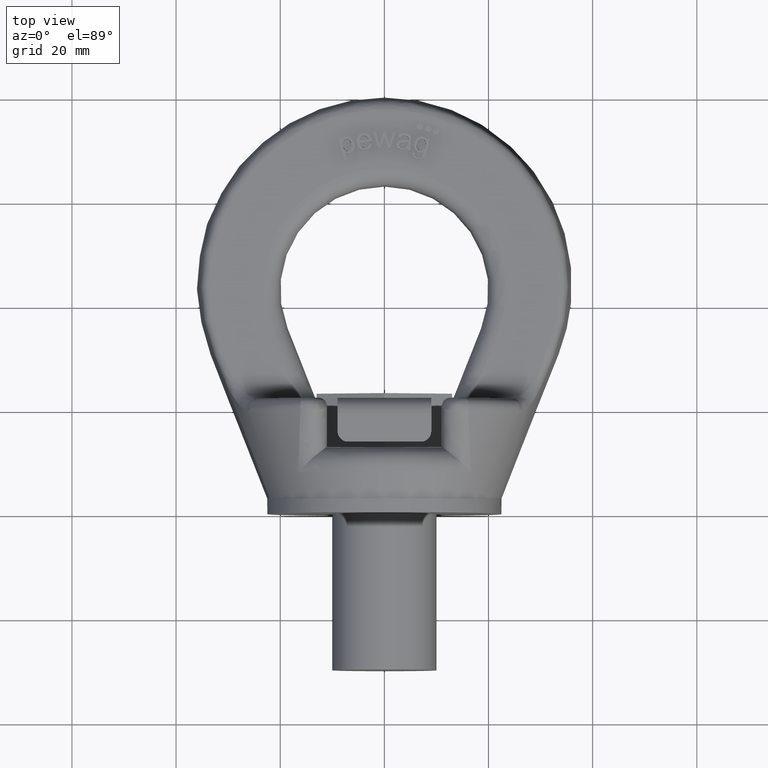
[diagram: clean part render]
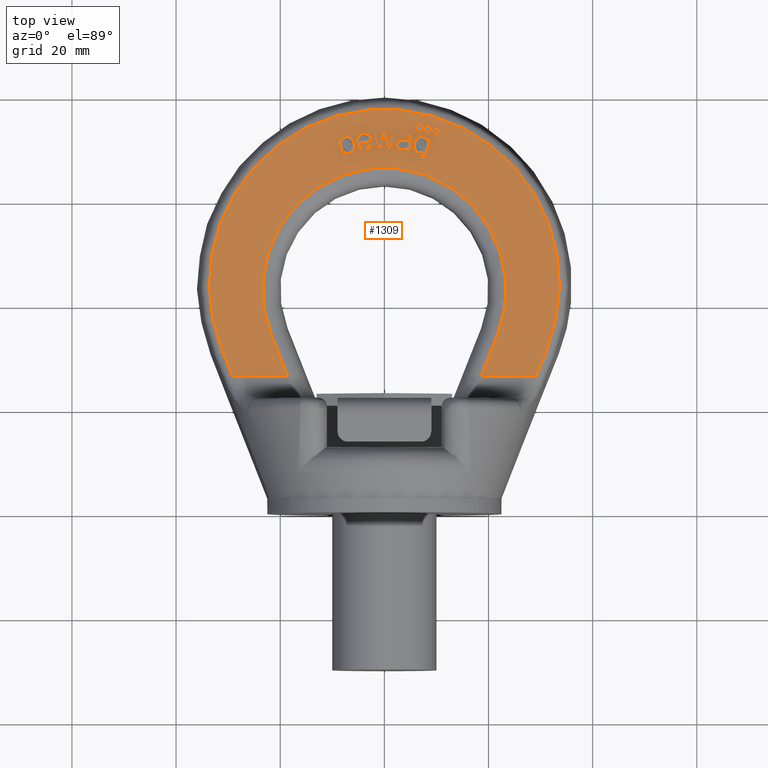
[diagram: same view with one face highlighted and labeled with its STEP entity id]
A machine part, top view. The second image highlights one B-rep face of the part: STEP entity #1309.
In plain terms, the highlighted planar face has unit normal (0, -0, -1).
Its self-contained STEP definition (entity closure, byte-faithful):
#1309=ADVANCED_FACE('',(#1756,#1757,#1758,#1759,#1760,#1761,#1762,#1763,
#1764),#1548,.F.);
#1548=PLANE('',#5122);
#1666=CIRCLE('',#5117,0.6375);
#1667=CIRCLE('',#5118,0.637499999999999);
#1668=CIRCLE('',#5119,0.637499999999999);
#1669=CIRCLE('',#5120,23.4);
#1670=CIRCLE('',#5121,33.6191909480285);
#1756=FACE_BOUND('',#1812,.T.);
#1757=FACE_BOUND('',#1813,.T.);
#1758=FACE_BOUND('',#1814,.T.);
#1759=FACE_BOUND('',#1815,.T.);
#1760=FACE_BOUND('',#1816,.T.);
#1761=FACE_BOUND('',#1817,.T.);
#1762=FACE_BOUND('',#1818,.T.);
#1763=FACE_BOUND('',#1819,.T.);
#1764=FACE_BOUND('',#1820,.T.);
#1812=EDGE_LOOP('',(#2702,#2703,#2704,#2705,#2706,#2707,#2708));
#1813=EDGE_LOOP('',(#2709,#2710,#2711,#2712,#2713,#2714,#2715,#2716,#2717,
#2718,#2719,#2720,#2721,#2722,#2723));
#1814=EDGE_LOOP('',(#2724,#2725,#2726,#2727,#2728));
#1815=EDGE_LOOP('',(#2729));
#1816=EDGE_LOOP('',(#2730));
#1817=EDGE_LOOP('',(#2731));
#1818=EDGE_LOOP('',(#2732,#2733,#2734,#2735,#2736,#2737,#2738,#2739));
#1819=EDGE_LOOP('',(#2740,#2741,#2742,#2743,#2744,#2745));
#1820=EDGE_LOOP('',(#2746,#2747,#2748,#2749,#2750,#2751,#2752,#2753,#2754));
#2086=LINE('',#6270,#2366);
#2087=LINE('',#6302,#2367);
#2088=LINE('',#6304,#2368);
#2089=LINE('',#6305,#2369);
#2090=LINE('',#6308,#2370);
#2091=LINE('',#6310,#2371);
#2092=LINE('',#6312,#2372);
#2093=LINE('',#6326,#2373);
#2094=LINE('',#6328,#2374);
#2095=LINE('',#6344,#2375);
#2096=LINE('',#6346,#2376);
#2097=LINE('',#6348,#2377);
#2098=LINE('',#6350,#2378);
#2099=LINE('',#6352,#2379);
#2100=LINE('',#6368,#2380);
#2101=LINE('',#6391,#2381);
#2102=LINE('',#6401,#2382);
#2103=LINE('',#6403,#2383);
#2104=LINE('',#6417,#2384);
#2105=LINE('',#6419,#2385);
#2106=LINE('',#6420,#2386);
#2107=LINE('',#6423,#2387);
#2108=LINE('',#6425,#2388);
#2109=LINE('',#6427,#2389);
#2110=LINE('',#6429,#2390);
#2111=LINE('',#6453,#2391);
#2112=LINE('',#6498,#2392);
#2366=VECTOR('',#5384,1.);
#2367=VECTOR('',#5385,1.);
#2368=VECTOR('',#5386,1.);
#2369=VECTOR('',#5387,1.);
#2370=VECTOR('',#5388,1.);
#2371=VECTOR('',#5389,1.);
#2372=VECTOR('',#5390,1.);
#2373=VECTOR('',#5391,1.);
#2374=VECTOR('',#5392,1.);
#2375=VECTOR('',#5393,1.);
#2376=VECTOR('',#5394,1.);
#2377=VECTOR('',#5395,1.);
#2378=VECTOR('',#5396,1.);
#2379=VECTOR('',#5397,1.);
#2380=VECTOR('',#5398,1.);
#2381=VECTOR('',#5399,1.);
#2382=VECTOR('',#5408,1.);
#2383=VECTOR('',#5409,1.);
#2384=VECTOR('',#5412,1.);
#2385=VECTOR('',#5413,1.);
#2386=VECTOR('',#5414,1.);
#2387=VECTOR('',#5415,1.);
#2388=VECTOR('',#5416,1.);
#2389=VECTOR('',#5417,1.);
#2390=VECTOR('',#5418,1.);
#2391=VECTOR('',#5419,1.);
#2392=VECTOR('',#5420,1.);
#2702=ORIENTED_EDGE('',*,*,#4266,.T.);
#2703=ORIENTED_EDGE('',*,*,#4267,.T.);
#2704=ORIENTED_EDGE('',*,*,#4268,.T.);
#2705=ORIENTED_EDGE('',*,*,#4269,.T.);
#2706=ORIENTED_EDGE('',*,*,#4270,.T.);
#2707=ORIENTED_EDGE('',*,*,#4271,.T.);
#2708=ORIENTED_EDGE('',*,*,#4272,.T.);
#2709=ORIENTED_EDGE('',*,*,#4273,.T.);
#2710=ORIENTED_EDGE('',*,*,#4274,.T.);
#2711=ORIENTED_EDGE('',*,*,#4275,.T.);
#2712=ORIENTED_EDGE('',*,*,#4276,.T.);
#2713=ORIENTED_EDGE('',*,*,#4277,.T.);
#2714=ORIENTED_EDGE('',*,*,#4278,.T.);
#2715=ORIENTED_EDGE('',*,*,#4279,.T.);
#2716=ORIENTED_EDGE('',*,*,#4280,.T.);
#2717=ORIENTED_EDGE('',*,*,#4281,.T.);
#2718=ORIENTED_EDGE('',*,*,#4282,.T.);
#2719=ORIENTED_EDGE('',*,*,#4283,.T.);
#2720=ORIENTED_EDGE('',*,*,#4284,.T.);
#2721=ORIENTED_EDGE('',*,*,#4285,.T.);
#2722=ORIENTED_EDGE('',*,*,#4286,.T.);
#2723=ORIENTED_EDGE('',*,*,#4287,.T.);
#2724=ORIENTED_EDGE('',*,*,#4288,.T.);
#2725=ORIENTED_EDGE('',*,*,#4289,.T.);
#2726=ORIENTED_EDGE('',*,*,#4290,.T.);
#2727=ORIENTED_EDGE('',*,*,#4291,.T.);
#2728=ORIENTED_EDGE('',*,*,#4292,.T.);
#2729=ORIENTED_EDGE('',*,*,#4293,.F.);
#2730=ORIENTED_EDGE('',*,*,#4294,.F.);
#2731=ORIENTED_EDGE('',*,*,#4295,.F.);
#2732=ORIENTED_EDGE('',*,*,#4296,.T.);
#2733=ORIENTED_EDGE('',*,*,#4297,.T.);
#2734=ORIENTED_EDGE('',*,*,#4298,.T.);
#2735=ORIENTED_EDGE('',*,*,#4299,.T.);
#2736=ORIENTED_EDGE('',*,*,#4300,.T.);
#2737=ORIENTED_EDGE('',*,*,#4301,.T.);
#2738=ORIENTED_EDGE('',*,*,#4302,.T.);
#2739=ORIENTED_EDGE('',*,*,#4303,.T.);
#2740=ORIENTED_EDGE('',*,*,#4304,.T.);
#2741=ORIENTED_EDGE('',*,*,#4305,.T.);
#2742=ORIENTED_EDGE('',*,*,#4306,.T.);
#2743=ORIENTED_EDGE('',*,*,#4307,.T.);
#2744=ORIENTED_EDGE('',*,*,#4308,.T.);
#2745=ORIENTED_EDGE('',*,*,#4309,.T.);
#2746=ORIENTED_EDGE('',*,*,#4310,.T.);
#2747=ORIENTED_EDGE('',*,*,#4311,.T.);
#2748=ORIENTED_EDGE('',*,*,#4312,.T.);
#2749=ORIENTED_EDGE('',*,*,#4313,.T.);
#2750=ORIENTED_EDGE('',*,*,#4314,.T.);
#2751=ORIENTED_EDGE('',*,*,#4315,.T.);
#2752=ORIENTED_EDGE('',*,*,#4316,.T.);
#2753=ORIENTED_EDGE('',*,*,#4317,.T.);
#2754=ORIENTED_EDGE('',*,*,#4318,.T.);
#3878=VERTEX_POINT('',#6263);
#3879=VERTEX_POINT('',#6264);
#3880=VERTEX_POINT('',#6269);
#3881=VERTEX_POINT('',#6271);
#3882=VERTEX_POINT('',#6284);
#3883=VERTEX_POINT('',#6301);
#3884=VERTEX_POINT('',#6303);
#3885=VERTEX_POINT('',#6306);
#3886=VERTEX_POINT('',#6307);
#3887=VERTEX_POINT('',#6309);
#3888=VERTEX_POINT('',#6311);
#3889=VERTEX_POINT('',#6313);
#3890=VERTEX_POINT('',#6320);
#3891=VERTEX_POINT('',#6325);
#3892=VERTEX_POINT('',#6327);
#3893=VERTEX_POINT('',#6329);
#3894=VERTEX_POINT('',#6336);
#3895=VERTEX_POINT('',#6343);
#3896=VERTEX_POINT('',#6345);
#3897=VERTEX_POINT('',#6347);
#3898=VERTEX_POINT('',#6349);
#3899=VERTEX_POINT('',#6351);
#3900=VERTEX_POINT('',#6361);
#3901=VERTEX_POINT('',#6362);
#3902=VERTEX_POINT('',#6367);
#3903=VERTEX_POINT('',#6369);
#3904=VERTEX_POINT('',#6390);
#3905=VERTEX_POINT('',#6393);
#3906=VERTEX_POINT('',#6395);
#3907=VERTEX_POINT('',#6397);
#3908=VERTEX_POINT('',#6399);
#3909=VERTEX_POINT('',#6400);
#3910=VERTEX_POINT('',#6402);
#3911=VERTEX_POINT('',#6404);
#3912=VERTEX_POINT('',#6409);
#3913=VERTEX_POINT('',#6411);
#3914=VERTEX_POINT('',#6416);
#3915=VERTEX_POINT('',#6418);
#3916=VERTEX_POINT('',#6421);
#3917=VERTEX_POINT('',#6422);
#3918=VERTEX_POINT('',#6424);
#3919=VERTEX_POINT('',#6426);
#3920=VERTEX_POINT('',#6428);
#3921=VERTEX_POINT('',#6430);
#3922=VERTEX_POINT('',#6454);
#3923=VERTEX_POINT('',#6455);
#3924=VERTEX_POINT('',#6460);
#3925=VERTEX_POINT('',#6477);
#3926=VERTEX_POINT('',#6484);
#3927=VERTEX_POINT('',#6497);
#3928=VERTEX_POINT('',#6499);
#3929=VERTEX_POINT('',#6504);
#3930=VERTEX_POINT('',#6517);
#4266=EDGE_CURVE('',#3878,#3879,#4854,.T.);
#4267=EDGE_CURVE('',#3879,#3880,#4855,.T.);
#4268=EDGE_CURVE('',#3880,#3881,#2086,.T.);
#4269=EDGE_CURVE('',#3881,#3882,#4856,.T.);
#4270=EDGE_CURVE('',#3882,#3883,#4857,.T.);
#4271=EDGE_CURVE('',#3883,#3884,#2087,.T.);
#4272=EDGE_CURVE('',#3884,#3878,#2088,.T.);
#4273=EDGE_CURVE('',#3885,#3886,#2089,.T.);
#4274=EDGE_CURVE('',#3886,#3887,#2090,.T.);
#4275=EDGE_CURVE('',#3887,#3888,#2091,.T.);
#4276=EDGE_CURVE('',#3888,#3889,#2092,.T.);
#4277=EDGE_CURVE('',#3889,#3890,#4858,.T.);
#4278=EDGE_CURVE('',#3890,#3891,#4859,.T.);
#4279=EDGE_CURVE('',#3891,#3892,#2093,.T.);
#4280=EDGE_CURVE('',#3892,#3893,#2094,.T.);
#4281=EDGE_CURVE('',#3893,#3894,#4860,.T.);
#4282=EDGE_CURVE('',#3894,#3895,#4861,.T.);
#4283=EDGE_CURVE('',#3895,#3896,#2095,.T.);
#4284=EDGE_CURVE('',#3896,#3897,#2096,.T.);
#4285=EDGE_CURVE('',#3897,#3898,#2097,.T.);
#4286=EDGE_CURVE('',#3898,#3899,#2098,.T.);
#4287=EDGE_CURVE('',#3899,#3885,#2099,.T.);
#4288=EDGE_CURVE('',#3900,#3901,#4862,.T.);
#4289=EDGE_CURVE('',#3901,#3902,#4863,.T.);
#4290=EDGE_CURVE('',#3902,#3903,#2100,.T.);
#4291=EDGE_CURVE('',#3903,#3904,#4864,.T.);
#4292=EDGE_CURVE('',#3904,#3900,#2101,.T.);
#4293=EDGE_CURVE('',#3905,#3905,#1666,.T.);
#4294=EDGE_CURVE('',#3906,#3906,#1667,.T.);
#4295=EDGE_CURVE('',#3907,#3907,#1668,.T.);
#4296=EDGE_CURVE('',#3908,#3909,#1669,.T.);
#4297=EDGE_CURVE('',#3909,#3910,#2102,.T.);
#4298=EDGE_CURVE('',#3910,#3911,#2103,.T.);
#4299=EDGE_CURVE('',#3911,#3912,#4865,.T.);
#4300=EDGE_CURVE('',#3912,#3913,#1670,.T.);
#4301=EDGE_CURVE('',#3913,#3914,#4866,.T.);
#4302=EDGE_CURVE('',#3914,#3915,#2104,.T.);
#4303=EDGE_CURVE('',#3915,#3908,#2105,.T.);
#4304=EDGE_CURVE('',#3916,#3917,#2106,.T.);
#4305=EDGE_CURVE('',#3917,#3918,#2107,.T.);
#4306=EDGE_CURVE('',#3918,#3919,#2108,.T.);
#4307=EDGE_CURVE('',#3919,#3920,#2109,.T.);
#4308=EDGE_CURVE('',#3920,#3921,#2110,.T.);
#4309=EDGE_CURVE('',#3921,#3916,#4867,.T.);
#4310=EDGE_CURVE('',#3922,#3923,#2111,.T.);
#4311=EDGE_CURVE('',#3923,#3924,#4868,.T.);
#4312=EDGE_CURVE('',#3924,#3925,#4869,.T.);
#4313=EDGE_CURVE('',#3925,#3926,#4870,.T.);
#4314=EDGE_CURVE('',#3926,#3927,#4871,.T.);
#4315=EDGE_CURVE('',#3927,#3928,#2112,.T.);
#4316=EDGE_CURVE('',#3928,#3929,#4872,.T.);
#4317=EDGE_CURVE('',#3929,#3930,#4873,.T.);
#4318=EDGE_CURVE('',#3930,#3922,#4874,.T.);
#4854=B_SPLINE_CURVE_WITH_KNOTS('',3,(#6251,#6252,#6253,#6254,#6255,#6256,
#6257,#6258,#6259,#6260,#6261,#6262),.UNSPECIFIED.,.F.,.F.,(4,2,2,2,2,4),
(0.,0.305645754892088,0.47082930624921,0.636012857606333,0.802206343843954,
1.),.UNSPECIFIED.);
#4855=B_SPLINE_CURVE_WITH_KNOTS('',3,(#6265,#6266,#6267,#6268),
 .UNSPECIFIED.,.F.,.F.,(4,4),(0.,1.),.UNSPECIFIED.);
#4856=B_SPLINE_CURVE_WITH_KNOTS('',3,(#6272,#6273,#6274,#6275,#6276,#6277,
#6278,#6279,#6280,#6281,#6282,#6283),.UNSPECIFIED.,.F.,.F.,(4,2,2,2,2,4),
(0.,0.163304651309279,0.382303784248529,0.619375661168199,0.856447538087862,
1.),.UNSPECIFIED.);
#4857=B_SPLINE_CURVE_WITH_KNOTS('',3,(#6285,#6286,#6287,#6288,#6289,#6290,
#6291,#6292,#6293,#6294,#6295,#6296,#6297,#6298,#6299,#6300),
 .UNSPECIFIED.,.F.,.F.,(4,2,2,2,2,2,2,4),(0.,0.139503666745463,0.312880428291741,
0.486257189838014,0.605370995480486,0.723854105689098,0.842337215897707,
1.),.UNSPECIFIED.);
#4858=B_SPLINE_CURVE_WITH_KNOTS('',3,(#6314,#6315,#6316,#6317,#6318,#6319),
 .UNSPECIFIED.,.F.,.F.,(4,2,4),(0.,0.728909607654967,1.),.UNSPECIFIED.);
#4859=B_SPLINE_CURVE_WITH_KNOTS('',3,(#6321,#6322,#6323,#6324),
 .UNSPECIFIED.,.F.,.F.,(4,4),(0.,1.),.UNSPECIFIED.);
#4860=B_SPLINE_CURVE_WITH_KNOTS('',3,(#6330,#6331,#6332,#6333,#6334,#6335),
 .UNSPECIFIED.,.F.,.F.,(4,2,4),(0.,0.752082276025118,1.),.UNSPECIFIED.);
#4861=B_SPLINE_CURVE_WITH_KNOTS('',3,(#6337,#6338,#6339,#6340,#6341,#6342),
 .UNSPECIFIED.,.F.,.F.,(4,2,4),(0.,0.250451922487254,1.),.UNSPECIFIED.);
#4862=B_SPLINE_CURVE_WITH_KNOTS('',3,(#6353,#6354,#6355,#6356,#6357,#6358,
#6359,#6360),.UNSPECIFIED.,.F.,.F.,(4,2,2,4),(0.,0.363477968613217,0.728087675912442,
1.),.UNSPECIFIED.);
#4863=B_SPLINE_CURVE_WITH_KNOTS('',3,(#6363,#6364,#6365,#6366),
 .UNSPECIFIED.,.F.,.F.,(4,4),(0.,1.),.UNSPECIFIED.);
#4864=B_SPLINE_CURVE_WITH_KNOTS('',3,(#6370,#6371,#6372,#6373,#6374,#6375,
#6376,#6377,#6378,#6379,#6380,#6381,#6382,#6383,#6384,#6385,#6386,#6387,
#6388,#6389),.UNSPECIFIED.,.F.,.F.,(4,2,2,2,2,2,2,2,2,4),(0.,0.102921203122041,
0.206156274885324,0.336063021724228,0.465707475917727,0.599570296299737,
0.733433116681747,0.86284525505617,0.992257393430593,1.),.UNSPECIFIED.);
#4865=B_SPLINE_CURVE_WITH_KNOTS('',3,(#6405,#6406,#6407,#6408),
 .UNSPECIFIED.,.F.,.F.,(4,4),(0.,1.),.UNSPECIFIED.);
#4866=B_SPLINE_CURVE_WITH_KNOTS('',3,(#6412,#6413,#6414,#6415),
 .UNSPECIFIED.,.F.,.F.,(4,4),(0.,1.),.UNSPECIFIED.);
#4867=B_SPLINE_CURVE_WITH_KNOTS('',3,(#6431,#6432,#6433,#6434,#6435,#6436,
#6437,#6438,#6439,#6440,#6441,#6442,#6443,#6444,#6445,#6446,#6447,#6448,
#6449,#6450,#6451,#6452),.UNSPECIFIED.,.F.,.F.,(4,2,2,2,2,2,2,2,2,2,4),
(0.,0.0830854503763885,0.165678296755078,0.273272220956502,0.380460889370528,
0.487248686046691,0.601946689884048,0.717055250849204,0.83190951462343,
0.915821305508707,1.),.UNSPECIFIED.);
#4868=B_SPLINE_CURVE_WITH_KNOTS('',3,(#6456,#6457,#6458,#6459),
 .UNSPECIFIED.,.F.,.F.,(4,4),(0.,1.),.UNSPECIFIED.);
#4869=B_SPLINE_CURVE_WITH_KNOTS('',3,(#6461,#6462,#6463,#6464,#6465,#6466,
#6467,#6468,#6469,#6470,#6471,#6472,#6473,#6474,#6475,#6476),
 .UNSPECIFIED.,.F.,.F.,(4,2,2,2,2,2,2,4),(0.,0.121639465164557,0.24393090499118,
0.445161792748218,0.646392680505264,0.763565096161265,0.881519242448369,
1.),.UNSPECIFIED.);
#4870=B_SPLINE_CURVE_WITH_KNOTS('',3,(#6478,#6479,#6480,#6481,#6482,#6483),
 .UNSPECIFIED.,.F.,.F.,(4,2,4),(0.,0.329344693449399,1.),.UNSPECIFIED.);
#4871=B_SPLINE_CURVE_WITH_KNOTS('',3,(#6485,#6486,#6487,#6488,#6489,#6490,
#6491,#6492,#6493,#6494,#6495,#6496),.UNSPECIFIED.,.F.,.F.,(4,2,2,2,2,4),
(0.,0.0173977322142934,0.21798335068495,0.490675035316427,0.745337517658217,
1.),.UNSPECIFIED.);
#4872=B_SPLINE_CURVE_WITH_KNOTS('',3,(#6500,#6501,#6502,#6503),
 .UNSPECIFIED.,.F.,.F.,(4,4),(0.,1.),.UNSPECIFIED.);
#4873=B_SPLINE_CURVE_WITH_KNOTS('',3,(#6505,#6506,#6507,#6508,#6509,#6510,
#6511,#6512,#6513,#6514,#6515,#6516),.UNSPECIFIED.,.F.,.F.,(4,2,2,2,2,4),
(0.,0.201730292707484,0.402155128097303,0.601755169925848,0.800199545078037,
1.),.UNSPECIFIED.);
#4874=B_SPLINE_CURVE_WITH_KNOTS('',3,(#6518,#6519,#6520,#6521,#6522,#6523,
#6524,#6525,#6526,#6527),.UNSPECIFIED.,.F.,.F.,(4,2,2,2,4),(0.,0.161403604805109,
0.323059797411179,0.661780038481089,1.),.UNSPECIFIED.);
#5117=AXIS2_PLACEMENT_3D('',#6392,#5400,#5401);
#5118=AXIS2_PLACEMENT_3D('',#6394,#5402,#5403);
#5119=AXIS2_PLACEMENT_3D('',#6396,#5404,#5405);
#5120=AXIS2_PLACEMENT_3D('',#6398,#5406,#5407);
#5121=AXIS2_PLACEMENT_3D('',#6410,#5410,#5411);
#5122=AXIS2_PLACEMENT_3D('',#6528,#5421,#5422);
#5384=DIRECTION('',(0.921964781589622,-0.387273729432299,4.9398002211419E-17));
#5385=DIRECTION('',(0.250765485507192,0.96804786621238,-1.23477599954991E-16));
#5386=DIRECTION('',(0.968047866212377,-0.250765485507203,3.19859393142696E-17));
#5387=DIRECTION('',(-0.25867982159022,-0.965963120363325,1.23211683957505E-16));
#5388=DIRECTION('',(-0.999999995291528,9.70409362794874E-5,-1.23778816393233E-20));
#5389=DIRECTION('',(-0.297315135511376,0.954779403944101,-1.21785165176542E-16));
#5390=DIRECTION('',(0.999999995291528,-9.70409363030123E-5,1.23778816423239E-20));
#5391=DIRECTION('',(0.266691689066273,0.963781895961414,-1.22933461812184E-16));
#5392=DIRECTION('',(0.999999995291528,-9.70409363020889E-5,1.23778816422061E-20));
#5393=DIRECTION('',(0.999999995291528,-9.70409362667265E-5,1.23778816376956E-20));
#5394=DIRECTION('',(-0.303113108936924,-0.952954586111318,1.21552403828461E-16));
#5395=DIRECTION('',(-0.999999995291528,9.7040936278785E-5,-1.23778816392337E-20));
#5396=DIRECTION('',(-0.260549492963036,0.965460492053769,-1.23147572109838E-16));
#5397=DIRECTION('',(-0.226097880051818,0.974104588140347,-1.24250154198807E-16));
#5398=DIRECTION('',(0.999885892515772,0.015106354554888,-1.92686381491128E-18));
#5399=DIRECTION('',(-0.990848561201468,-0.134978252933505,1.72169076551534E-17));
#5400=DIRECTION('',(0.,1.27553196763001E-16,1.));
#5401=DIRECTION('',(0.,0.999999999999998,0.));
#5402=DIRECTION('',(0.,1.27553196763001E-16,1.));
#5403=DIRECTION('',(0.,1.,0.));
#5404=DIRECTION('',(0.,1.27553196763001E-16,1.));
#5405=DIRECTION('',(0.,1.,0.));
#5406=DIRECTION('',(0.,-1.27553196763001E-16,-1.));
#5407=DIRECTION('',(0.,1.,-1.48266963758701E-16));
#5408=DIRECTION('',(-0.367717117049368,-0.92993769782115,1.18616526147513E-16));
#5409=DIRECTION('',(1.,0.,0.));
#5410=DIRECTION('',(0.,1.27553196763001E-16,1.));
#5411=DIRECTION('',(0.,1.,-1.03198407044268E-16));
#5412=DIRECTION('',(1.,0.,0.));
#5413=DIRECTION('',(-0.367717117049368,0.92993769782115,-1.18616526147513E-16));
#5414=DIRECTION('',(0.250577600242591,-0.968096517015047,1.23483805520396E-16));
#5415=DIRECTION('',(-0.968096517015048,-0.250577600242588,3.19619739481433E-17));
#5416=DIRECTION('',(-0.25057760024259,0.968096517015047,-1.23483805520396E-16));
#5417=DIRECTION('',(0.968096517015047,0.250577600242589,-3.19619739481434E-17));
#5418=DIRECTION('',(0.250577600242586,-0.968096517015048,1.23483805520396E-16));
#5419=DIRECTION('',(-0.990822345707979,0.135170556134604,-1.72414365432014E-17));
#5420=DIRECTION('',(-0.964062920184232,0.265674021925085,-3.38875707934281E-17));
#5421=DIRECTION('',(0.,-1.27553196763001E-16,-1.));
#5422=DIRECTION('',(0.,1.,-1.28369537222284E-16));
#6251=CARTESIAN_POINT('',(8.79898946240282,71.8786327562129,8.5));
#6252=CARTESIAN_POINT('',(8.57651448063281,71.0197967367643,8.5));
#6253=CARTESIAN_POINT('',(8.3540394988628,70.1609607173157,8.5));
#6254=CARTESIAN_POINT('',(8.01132987620973,68.837974349121,8.5));
#6255=CARTESIAN_POINT('',(7.87807455333803,68.522079478594,8.5));
#6256=CARTESIAN_POINT('',(7.58497726179928,68.1846957037344,8.5));
#6257=CARTESIAN_POINT('',(7.39310117765766,68.0704241329327,8.5));
#6258=CARTESIAN_POINT('',(6.91833776398939,67.9545785434903,8.5));
#6259=CARTESIAN_POINT('',(6.64697058539713,67.9649535219785,8.5));
#6260=CARTESIAN_POINT('',(5.98085890860076,68.137504718943,8.5));
#6261=CARTESIAN_POINT('',(5.70921870488107,68.2932282336898,8.5));
#6262=CARTESIAN_POINT('',(5.52790895139211,68.5109095002027,8.5));
#6263=CARTESIAN_POINT('',(8.79898946240282,71.8786327562129,8.5));
#6264=CARTESIAN_POINT('',(5.52790895139211,68.5109095002027,8.5));
#6265=CARTESIAN_POINT('',(5.52790895139211,68.5109095002027,8.5));
#6266=CARTESIAN_POINT('',(5.34659919790314,68.7285907667155,8.5));
#6267=CARTESIAN_POINT('',(5.30194205661865,68.9973534996188,8.5));
#6268=CARTESIAN_POINT('',(5.39259396753507,69.3164226172905,8.5));
#6269=CARTESIAN_POINT('',(5.39259396753507,69.3164226172905,8.5));
#6270=CARTESIAN_POINT('',(54.6250305673208,48.6362082405933,8.50000000000001));
#6271=CARTESIAN_POINT('',(5.87390096195641,69.1142483494079,8.5));
#6272=CARTESIAN_POINT('',(5.87390096195641,69.1142483494079,8.5));
#6273=CARTESIAN_POINT('',(5.85498813385185,68.9574181953593,8.5));
#6274=CARTESIAN_POINT('',(5.88419046950801,68.8319258785657,8.5));
#6275=CARTESIAN_POINT('',(6.0651943317907,68.6115058627061,8.5));
#6276=CARTESIAN_POINT('',(6.22724591268052,68.5195589408341,8.5));
#6277=CARTESIAN_POINT('',(6.68667020423299,68.4005485493586,8.5));
#6278=CARTESIAN_POINT('',(6.88179356939467,68.3994206262308,8.5));
#6279=CARTESIAN_POINT('',(7.18948607207809,68.519630690938,8.5));
#6280=CARTESIAN_POINT('',(7.31138155145837,68.6284446741769,8.5));
#6281=CARTESIAN_POINT('',(7.45363272689452,68.8801069484927,8.5));
#6282=CARTESIAN_POINT('',(7.52221690080783,69.0938342491087,8.5));
#6283=CARTESIAN_POINT('',(7.60541166714575,69.4238200492549,8.5));
#6284=CARTESIAN_POINT('',(7.60541166714575,69.4238200492549,8.5));
#6285=CARTESIAN_POINT('',(7.60541166714575,69.4238200492549,8.5));
#6286=CARTESIAN_POINT('',(7.31290371185499,69.2210580940184,8.5));
#6287=CARTESIAN_POINT('',(6.99985899637228,69.164006117513,8.5));
#6288=CARTESIAN_POINT('',(6.24807379201368,69.3587503944729,8.5));
#6289=CARTESIAN_POINT('',(5.96282595273072,69.5898785885179,8.5));
#6290=CARTESIAN_POINT('',(5.65983860933775,70.2995589979864,8.5));
#6291=CARTESIAN_POINT('',(5.637130252567,70.6839330985516,8.5));
#6292=CARTESIAN_POINT('',(5.81789117525512,71.3817373643536,8.5));
#6293=CARTESIAN_POINT('',(5.93825379723593,71.6302153882028,8.5));
#6294=CARTESIAN_POINT('',(6.27213719047292,72.0567528742911,8.5));
#6295=CARTESIAN_POINT('',(6.47200786841805,72.2040089459897,8.5));
#6296=CARTESIAN_POINT('',(6.93800471702233,72.3618299142355,8.5));
#6297=CARTESIAN_POINT('',(7.18864145689843,72.367660963926,8.5));
#6298=CARTESIAN_POINT('',(7.81512912719725,72.2053740664594,8.5));
#6299=CARTESIAN_POINT('',(8.07282535547313,71.9869985125222,8.5));
#6300=CARTESIAN_POINT('',(8.23132911263805,71.641573605007,8.5));
#6301=CARTESIAN_POINT('',(8.23132911263805,71.641573605007,8.5));
#6302=CARTESIAN_POINT('',(16.6978783633742,104.325596766249,8.5));
#6303=CARTESIAN_POINT('',(8.32457230352695,72.0015269366876,8.5));
#6304=CARTESIAN_POINT('',(63.6266939401522,57.6759301704381,8.5));
#6305=CARTESIAN_POINT('',(9.19005756508472,106.820170833276,8.5));
#6306=CARTESIAN_POINT('',(-0.0137360153884845,72.451331735121,8.5));
#6307=CARTESIAN_POINT('',(-0.647856610014734,70.0833963294667,8.5));
#6308=CARTESIAN_POINT('',(71.9980665900207,70.0763467010293,8.5));
#6309=CARTESIAN_POINT('',(-1.20209621175209,70.0834501133969,8.5));
#6310=CARTESIAN_POINT('',(-0.385020843700651,67.4595449040514,8.5));
#6311=CARTESIAN_POINT('',(-2.16093062102392,73.1625915240454,8.5));
#6312=CARTESIAN_POINT('',(71.998365383755,73.1553950364916,8.5));
#6313=CARTESIAN_POINT('',(-1.61222235263723,73.162538276881,8.5));
#6314=CARTESIAN_POINT('',(-1.61222235263723,73.162538276881,8.5));
#6315=CARTESIAN_POINT('',(-1.44597109747329,72.5699792910798,8.5));
#6316=CARTESIAN_POINT('',(-1.27971984230935,71.9774203052786,8.5));
#6317=CARTESIAN_POINT('',(-1.05163771330737,71.1644813899752,8.5));
#6318=CARTESIAN_POINT('',(-0.989609485295319,70.9441568787955,8.5));
#6319=CARTESIAN_POINT('',(-0.927679934370276,70.7238046584546,8.5));
#6320=CARTESIAN_POINT('',(-0.927679934370276,70.7238046584546,8.5));
#6321=CARTESIAN_POINT('',(-0.927679934370276,70.7238046584546,8.5));
#6322=CARTESIAN_POINT('',(-0.919932902491467,70.7564209444345,8.5));
#6323=CARTESIAN_POINT('',(-0.865705261933736,70.9684264275676,8.5));
#6324=CARTESIAN_POINT('',(-0.766103384873483,71.3587339806254,8.5));
#6325=CARTESIAN_POINT('',(-0.766103384873483,71.3587339806254,8.5));
#6326=CARTESIAN_POINT('',(9.20075968486139,107.377412402021,8.5));
#6327=CARTESIAN_POINT('',(-0.267002081753749,73.1624077354458,8.5));
#6328=CARTESIAN_POINT('',(71.998365383755,73.1553950364917,8.5));
#6329=CARTESIAN_POINT('',(0.27838738662253,73.1623548103409,8.5));
#6330=CARTESIAN_POINT('',(0.27838738662253,73.1623548103409,8.5));
#6331=CARTESIAN_POINT('',(0.43468196040523,72.5668974985001,8.5));
#6332=CARTESIAN_POINT('',(0.59097653418793,71.9714401866593,8.5));
#6333=CARTESIAN_POINT('',(0.798792326109983,71.179695279456,8.5));
#6334=CARTESIAN_POINT('',(0.851959633484767,70.9838434395754,8.5));
#6335=CARTESIAN_POINT('',(0.904303896241835,70.7877737219538,8.5));
#6336=CARTESIAN_POINT('',(0.904303896241835,70.7877737219538,8.5));
#6337=CARTESIAN_POINT('',(0.904303896241835,70.7877737219538,8.5));
#6338=CARTESIAN_POINT('',(0.964061533737582,70.9860070302859,8.5));
#6339=CARTESIAN_POINT('',(1.02381917123333,71.184240338618,8.5));
#6340=CARTESIAN_POINT('',(1.26241840777457,71.9757427809367,8.5));
#6341=CARTESIAN_POINT('',(1.4413848412401,72.5689742762935,8.5));
#6342=CARTESIAN_POINT('',(1.62028885749561,73.1622245909652,8.5));
#6343=CARTESIAN_POINT('',(1.62028885749561,73.1622245909652,8.5));
#6344=CARTESIAN_POINT('',(71.9983653837556,73.1553950364942,8.5));
#6345=CARTESIAN_POINT('',(2.13691539244839,73.1621744570423,8.5));
#6346=CARTESIAN_POINT('',(13.4194217981186,108.633145210574,8.5));
#6347=CARTESIAN_POINT('',(1.15757059564467,70.0832211291195,8.5));
#6348=CARTESIAN_POINT('',(71.9980665900207,70.0763467010294,8.5));
#6349=CARTESIAN_POINT('',(0.605543527247587,70.0832746983433,8.5));
#6350=CARTESIAN_POINT('',(0.442173269456989,70.6886396433284,8.5));
#6351=CARTESIAN_POINT('',(0.107902464307892,71.9272728578795,8.5));
#6352=CARTESIAN_POINT('',(-0.197346763155484,73.2423876786385,8.5));
#6353=CARTESIAN_POINT('',(-4.74699008493975,71.1055938477679,8.5));
#6354=CARTESIAN_POINT('',(-4.68161932476122,70.7732460618364,8.5));
#6355=CARTESIAN_POINT('',(-4.55023154336239,70.529992604226,8.5));
#6356=CARTESIAN_POINT('',(-4.15480729109949,70.2211943499796,8.5));
#6357=CARTESIAN_POINT('',(-3.92620517381731,70.1618254498211,8.5));
#6358=CARTESIAN_POINT('',(-3.47459436346688,70.223346090385,8.5));
#6359=CARTESIAN_POINT('',(-3.31692359108438,70.2952994838517,8.5));
#6360=CARTESIAN_POINT('',(-3.19340702644396,70.4130749307396,8.5));
#6361=CARTESIAN_POINT('',(-4.74699008493975,71.1055938477679,8.5));
#6362=CARTESIAN_POINT('',(-3.19340702644396,70.4130749307396,8.5));
#6363=CARTESIAN_POINT('',(-3.19340702644396,70.4130749307396,8.5));
#6364=CARTESIAN_POINT('',(-3.07113335757217,70.5317783405106,8.5));
#6365=CARTESIAN_POINT('',(-2.98418792064296,70.7049220823113,8.5));
#6366=CARTESIAN_POINT('',(-2.93396036445001,70.9345114038509,8.5));
#6367=CARTESIAN_POINT('',(-2.93396036445001,70.9345114038509,8.5));
#6368=CARTESIAN_POINT('',(72.2708770906737,72.0707119916814,8.5));
#6369=CARTESIAN_POINT('',(-2.381321629111,70.9428607132464,8.5));
#6370=CARTESIAN_POINT('',(-2.381321629111,70.9428607132464,8.5));
#6371=CARTESIAN_POINT('',(-2.42535852858496,70.61865168018,8.5));
#6372=CARTESIAN_POINT('',(-2.55127979576352,70.3546109125625,8.5));
#6373=CARTESIAN_POINT('',(-2.96752478987701,69.9462441783648,8.5));
#6374=CARTESIAN_POINT('',(-3.25220550703204,69.820216875555,8.5));
#6375=CARTESIAN_POINT('',(-4.06663956550381,69.7092706718195,8.5));
#6376=CARTESIAN_POINT('',(-4.44481201957732,69.7971082473882,8.5));
#6377=CARTESIAN_POINT('',(-5.0520612786068,70.2756240439818,8.5));
#6378=CARTESIAN_POINT('',(-5.23755229067753,70.641553056945,8.5));
#6379=CARTESIAN_POINT('',(-5.37505987516063,71.6509689389722,8.5));
#6380=CARTESIAN_POINT('',(-5.29453293697459,72.0679309236213,8.5));
#6381=CARTESIAN_POINT('',(-4.83461508380839,72.707750494261,8.5));
#6382=CARTESIAN_POINT('',(-4.50431694791806,72.8975857911563,8.5));
#6383=CARTESIAN_POINT('',(-3.6613831781135,73.0124143654128,8.5));
#6384=CARTESIAN_POINT('',(-3.3026477873741,72.9197344252159,8.5));
#6385=CARTESIAN_POINT('',(-2.70077470952898,72.4355299876598,8.5));
#6386=CARTESIAN_POINT('',(-2.51611298522826,72.0634715137966,8.5));
#6387=CARTESIAN_POINT('',(-2.4433234847975,71.529138240066,8.5));
#6388=CARTESIAN_POINT('',(-2.4381092474634,71.4826656706019,8.5));
#6389=CARTESIAN_POINT('',(-2.43193661052201,71.4209617916297,8.5));
#6390=CARTESIAN_POINT('',(-2.43193661052201,71.4209617916297,8.5));
#6391=CARTESIAN_POINT('',(73.1287314130617,81.7142067532462,8.5));
#6392=CARTESIAN_POINT('',(6.79058401496503,74.1688621662021,8.5));
#6393=CARTESIAN_POINT('',(6.79058401496503,74.806362166202,8.5));
#6394=CARTESIAN_POINT('',(8.40038152884953,73.774073343803,8.5));
#6395=CARTESIAN_POINT('',(8.40038152884953,74.411573343803,8.5));
#6396=CARTESIAN_POINT('',(9.9875,73.2962018040216,8.5));
#6397=CARTESIAN_POINT('',(9.9875,73.9337018040216,8.5));
#6398=CARTESIAN_POINT('',(0.,43.,8.50000000000001));
#6399=CARTESIAN_POINT('',(-21.7605421290149,34.3954194610448,8.50000000000001));
#6400=CARTESIAN_POINT('',(21.7605421290149,34.3954194610447,8.50000000000001));
#6401=CARTESIAN_POINT('',(18.0452995323873,24.9997618020321,8.50000000000001));
#6402=CARTESIAN_POINT('',(18.5396702701893,26.25,8.50000000000001));
#6403=CARTESIAN_POINT('',(72.,26.25,8.50000000000001));
#6404=CARTESIAN_POINT('',(29.0810240794151,26.25,8.50000000000001));
#6405=CARTESIAN_POINT('',(29.0810240794151,26.25,8.50000000000001));
#6406=CARTESIAN_POINT('',(29.7762514743879,27.9620139854233,8.50000000000001));
#6407=CARTESIAN_POINT('',(30.4703744083063,29.6744767483126,8.50000000000001));
#6408=CARTESIAN_POINT('',(31.1635985003415,31.3873028852067,8.50000000000001));
#6409=CARTESIAN_POINT('',(31.1635985003415,31.3873028852067,8.50000000000001));
#6410=CARTESIAN_POINT('',(-6.34413156928674E-17,44.,8.50000000000001));
#6411=CARTESIAN_POINT('',(-31.1635985003415,31.3873028852068,8.50000000000001));
#6412=CARTESIAN_POINT('',(-31.1635985003415,31.3873028852068,8.50000000000001));
#6413=CARTESIAN_POINT('',(-30.4703744083064,29.6744767483127,8.50000000000001));
#6414=CARTESIAN_POINT('',(-29.776251474388,27.9620139854233,8.50000000000001));
#6415=CARTESIAN_POINT('',(-29.0810240794153,26.25,8.50000000000001));
#6416=CARTESIAN_POINT('',(-29.0810240794153,26.25,8.50000000000001));
#6417=CARTESIAN_POINT('',(72.,26.25,8.50000000000001));
#6418=CARTESIAN_POINT('',(-18.5396702701893,26.25,8.50000000000001));
#6419=CARTESIAN_POINT('',(-21.7605421290149,34.3954194610448,8.50000000000001));
#6420=CARTESIAN_POINT('',(-7.60725268923536,69.3948289347434,8.5));
#6421=CARTESIAN_POINT('',(-7.59295572992726,69.3395932053859,8.5));
#6422=CARTESIAN_POINT('',(-7.21753804872472,67.8891820383614,8.5));
#6423=CARTESIAN_POINT('',(72.3897146405107,88.4943531036177,8.5));
#6424=CARTESIAN_POINT('',(-7.73160504806375,67.7561233269682,8.5));
#6425=CARTESIAN_POINT('',(-8.12131968857439,69.2617702233502,8.5));
#6426=CARTESIAN_POINT('',(-8.79873934216415,71.8789539084158,8.5));
#6427=CARTESIAN_POINT('',(71.3225803464103,92.6171836850655,8.5));
#6428=CARTESIAN_POINT('',(-8.33072417818258,72.0000927769134,8.5));
#6429=CARTESIAN_POINT('',(-7.65330452459292,69.3829090918482,8.5));
#6430=CARTESIAN_POINT('',(-8.23046749699061,71.6127551067646,8.5));
#6431=CARTESIAN_POINT('',(-8.23046749699061,71.6127551067646,8.5));
#6432=CARTESIAN_POINT('',(-8.15938816196481,71.7928742029904,8.5));
#6433=CARTESIAN_POINT('',(-8.06350748731269,71.9389824496971,8.5));
#6434=CARTESIAN_POINT('',(-7.82499456457625,72.1619598638295,8.5));
#6435=CARTESIAN_POINT('',(-7.6659503756982,72.2440358482275,8.5));
#6436=CARTESIAN_POINT('',(-7.20971591378483,72.362125454589,8.5));
#6437=CARTESIAN_POINT('',(-6.96336420199139,72.3551369383658,8.5));
#6438=CARTESIAN_POINT('',(-6.5004134422803,72.1969695534157,8.5));
#6439=CARTESIAN_POINT('',(-6.30272585543126,72.0499542544879,8.5));
#6440=CARTESIAN_POINT('',(-5.97830449911298,71.6250082270929,8.5));
#6441=CARTESIAN_POINT('',(-5.85872573058388,71.3764860798601,8.5));
#6442=CARTESIAN_POINT('',(-5.70616121572653,70.7870591905033,8.5));
#6443=CARTESIAN_POINT('',(-5.69074584593272,70.4979294644081,8.5));
#6444=CARTESIAN_POINT('',(-5.78781590647119,69.9530200067481,8.5));
#6445=CARTESIAN_POINT('',(-5.90166421325206,69.7234521521529,8.5));
#6446=CARTESIAN_POINT('',(-6.25781136837307,69.3530563976599,8.5));
#6447=CARTESIAN_POINT('',(-6.46434893428179,69.2307826031535,8.5));
#6448=CARTESIAN_POINT('',(-6.87024766917656,69.1257216622826,8.5));
#6449=CARTESIAN_POINT('',(-7.03373061452318,69.1215906814328,8.5));
#6450=CARTESIAN_POINT('',(-7.34275493025402,69.1923342114821,8.5));
#6451=CARTESIAN_POINT('',(-7.47707497760511,69.2539116228612,8.5));
#6452=CARTESIAN_POINT('',(-7.59295572992726,69.3395932053859,8.5));
#6453=CARTESIAN_POINT('',(68.0506411704552,61.0505520474784,8.5));
#6454=CARTESIAN_POINT('',(5.07101955804047,69.6423954948667,8.5));
#6455=CARTESIAN_POINT('',(4.52186657317713,69.7173123704181,8.5));
#6456=CARTESIAN_POINT('',(4.52186657317713,69.7173123704181,8.5));
#6457=CARTESIAN_POINT('',(4.48161013433661,69.8314374805493,8.5));
#6458=CARTESIAN_POINT('',(4.46372906072401,69.9622615802353,8.5));
#6459=CARTESIAN_POINT('',(4.46792942813183,70.1076301568289,8.5));
#6460=CARTESIAN_POINT('',(4.46792942813183,70.1076301568289,8.5));
#6461=CARTESIAN_POINT('',(4.46792942813183,70.1076301568289,8.5));
#6462=CARTESIAN_POINT('',(4.25062990434595,69.971581625303,8.5));
#6463=CARTESIAN_POINT('',(4.04746950932092,69.8818856292469,8.5));
#6464=CARTESIAN_POINT('',(3.6687085547154,69.7971266783388,8.5));
#6465=CARTESIAN_POINT('',(3.47115294340684,69.7904259133551,8.5));
#6466=CARTESIAN_POINT('',(2.92309607228575,69.8651932542247,8.5));
#6467=CARTESIAN_POINT('',(2.67229400777513,69.98280352376,8.5));
#6468=CARTESIAN_POINT('',(2.35086849740727,70.3602340298592,8.5));
#6469=CARTESIAN_POINT('',(2.2873055911871,70.5817826699189,8.5));
#6470=CARTESIAN_POINT('',(2.34241638009463,70.9857537912983,8.5));
#6471=CARTESIAN_POINT('',(2.39615620702307,71.1177802345898,8.5));
#6472=CARTESIAN_POINT('',(2.56834638279717,71.3453097791438,8.5));
#6473=CARTESIAN_POINT('',(2.67241881445653,71.4323267660071,8.5));
#6474=CARTESIAN_POINT('',(2.91685121226811,71.5507468204887,8.5));
#6475=CARTESIAN_POINT('',(3.05014886004869,71.5903811603548,8.5));
#6476=CARTESIAN_POINT('',(3.19574205479081,71.6100219487446,8.5));
#6477=CARTESIAN_POINT('',(3.19574205479081,71.6100219487446,8.5));
#6478=CARTESIAN_POINT('',(3.19574205479081,71.6100219487446,8.5));
#6479=CARTESIAN_POINT('',(3.30354691289766,71.6227475620713,8.5));
#6480=CARTESIAN_POINT('',(3.46272215478613,71.6273677890326,8.5));
#6481=CARTESIAN_POINT('',(4.10533684881902,71.6163316492127,8.5));
#6482=CARTESIAN_POINT('',(4.42689161520656,71.6318991428277,8.5));
#6483=CARTESIAN_POINT('',(4.63688600467709,71.6734787007848,8.5));
#6484=CARTESIAN_POINT('',(4.63688600467709,71.6734787007848,8.5));
#6485=CARTESIAN_POINT('',(4.63688600467709,71.6734787007848,8.5));
#6486=CARTESIAN_POINT('',(4.6487777310093,71.7442785487841,8.5));
#6487=CARTESIAN_POINT('',(4.65604625310919,71.7893737796968,8.5));
#6488=CARTESIAN_POINT('',(4.68734918120867,72.0188293766403,8.5));
#6489=CARTESIAN_POINT('',(4.6572087193835,72.174369344668,8.5));
#6490=CARTESIAN_POINT('',(4.45218598601069,72.4094644683842,8.5));
#6491=CARTESIAN_POINT('',(4.25980862030617,72.4941315742852,8.5));
#6492=CARTESIAN_POINT('',(3.74682738893683,72.5641138053392,8.5));
#6493=CARTESIAN_POINT('',(3.55914098567824,72.5469235658845,8.5));
#6494=CARTESIAN_POINT('',(3.2991604049609,72.409016557999,8.5));
#6495=CARTESIAN_POINT('',(3.19199272479828,72.2700139125414,8.5));
#6496=CARTESIAN_POINT('',(3.10545542734725,72.0612611949325,8.5));
#6497=CARTESIAN_POINT('',(3.10545542734725,72.0612611949325,8.5));
#6498=CARTESIAN_POINT('',(62.5426520911426,55.6817088244242,8.50000000000001));
#6499=CARTESIAN_POINT('',(2.60078365687588,72.2003373653837,8.5));
#6500=CARTESIAN_POINT('',(2.60078365687588,72.2003373653837,8.5));
#6501=CARTESIAN_POINT('',(2.67745593064673,72.4104358951282,8.5));
#6502=CARTESIAN_POINT('',(2.77799175341174,72.5744839918424,8.5));
#6503=CARTESIAN_POINT('',(2.90348723891315,72.6923321208444,8.5));
#6504=CARTESIAN_POINT('',(2.90348723891315,72.6923321208444,8.5));
#6505=CARTESIAN_POINT('',(2.90348723891315,72.6923321208444,8.5));
#6506=CARTESIAN_POINT('',(3.02803357277606,72.8114070408518,8.5));
#6507=CARTESIAN_POINT('',(3.19764312403103,72.8925124667942,8.5));
#6508=CARTESIAN_POINT('',(3.62152215412322,72.9812489297348,8.5));
#6509=CARTESIAN_POINT('',(3.86231622082728,72.9850860187127,8.5));
#6510=CARTESIAN_POINT('',(4.39393138581474,72.9125616980692,8.5));
#6511=CARTESIAN_POINT('',(4.60450777828536,72.8520124670616,8.5));
#6512=CARTESIAN_POINT('',(4.92005652414519,72.6842338248966,8.5));
#6513=CARTESIAN_POINT('',(5.03111087837924,72.590812688941,8.5));
#6514=CARTESIAN_POINT('',(5.16192699524547,72.3835850371029,8.5));
#6515=CARTESIAN_POINT('',(5.20026836573503,72.2593930030934,8.5));
#6516=CARTESIAN_POINT('',(5.21156055282236,72.1130081972792,8.5));
#6517=CARTESIAN_POINT('',(5.21156055282236,72.1130081972792,8.5));
#6518=CARTESIAN_POINT('',(5.21156055282236,72.1130081972792,8.5));
#6519=CARTESIAN_POINT('',(5.21704748019045,72.0222806238297,8.5));
#6520=CARTESIAN_POINT('',(5.20421296087663,71.8627276667951,8.5));
#6521=CARTESIAN_POINT('',(5.14155811730976,71.4034573874668,8.5));
#6522=CARTESIAN_POINT('',(5.11020620184236,71.1736427050821,8.5));
#6523=CARTESIAN_POINT('',(5.01316222599718,70.4622944460131,8.5));
#6524=CARTESIAN_POINT('',(4.98268005016114,70.1570128159184,8.5));
#6525=CARTESIAN_POINT('',(4.99402538629849,69.8966922517703,8.5));
#6526=CARTESIAN_POINT('',(5.0211246407113,69.7677112587283,8.5));
#6527=CARTESIAN_POINT('',(5.07101955804047,69.6423954948667,8.5));
#6528=CARTESIAN_POINT('',(72.,90.,8.5));